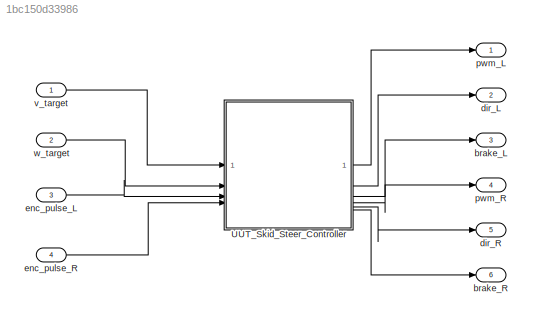
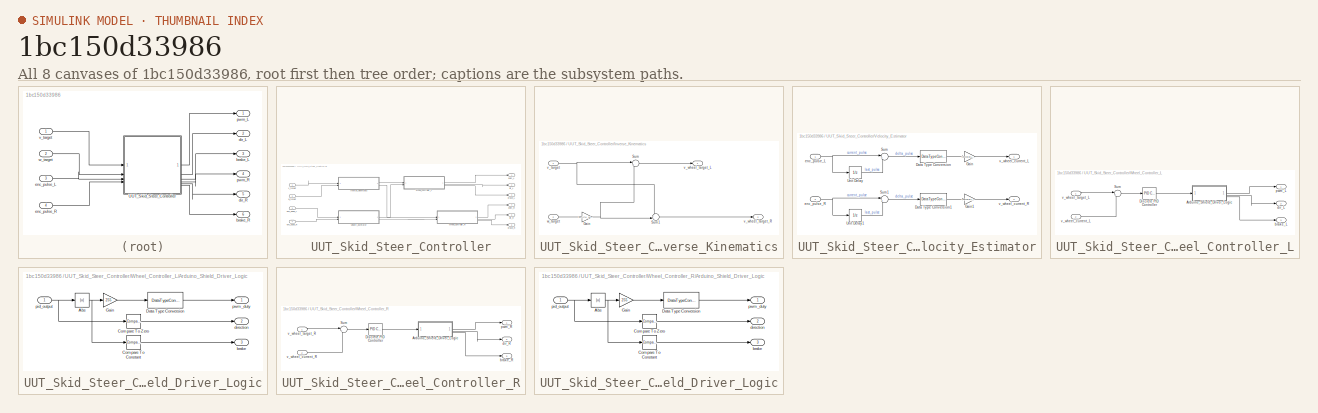
[diagram: thumbnail index - all 8 canvases of the model, root first then tree order]
MODEL slx_1bc150d33986
KIND model
CONFIG AbsTol = auto
CONFIG EnableMultiTasking = off
CONFIG FixedStep = 0.01
CONFIG MaxStep = auto
CONFIG MinStep = auto
CONFIG RelTol = 1e-3
CONFIG SampleTimeConstraint = Unconstrained
CONFIG SolverName = ode4
CONFIG StartTime = 0.0
CONFIG StopTime = 10
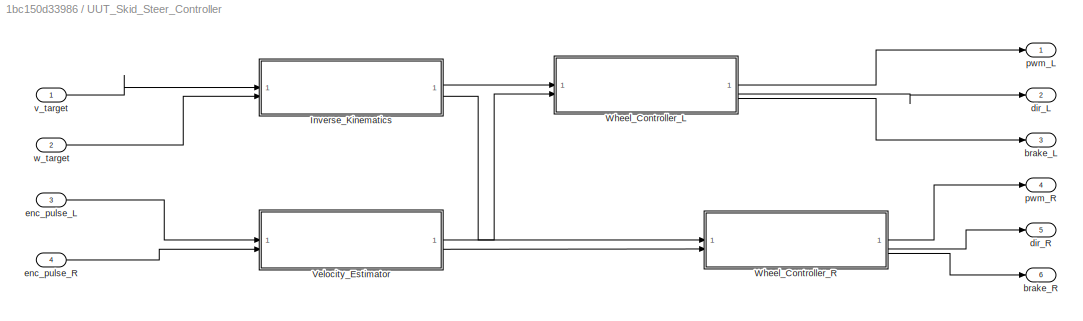
BLOCK [SubSystem] UUT_Skid_Steer_Controller
BLOCK [SubSystem] UUT_Skid_Steer_Controller/Inverse_Kinematics
BLOCK [Gain] UUT_Skid_Steer_Controller/Inverse_Kinematics/Gain
  Gain = TRACK_WIDTH / 2
BLOCK [Sum] UUT_Skid_Steer_Controller/Inverse_Kinematics/Sum
  Inputs = |+-
BLOCK [Sum] UUT_Skid_Steer_Controller/Inverse_Kinematics/Sum1
  Inputs = ++|
BLOCK [Inport] UUT_Skid_Steer_Controller/Inverse_Kinematics/v_target
  OutDataTypeStr = double
  SignalType = real
  Unit = m/s
BLOCK [Outport] UUT_Skid_Steer_Controller/Inverse_Kinematics/v_wheel_target_L
  OutDataTypeStr = double
  SignalType = real
  Unit = m/s
BLOCK [Outport] UUT_Skid_Steer_Controller/Inverse_Kinematics/v_wheel_target_R
  OutDataTypeStr = double
  Port = 2
  SignalType = real
  Unit = m/s
BLOCK [Inport] UUT_Skid_Steer_Controller/Inverse_Kinematics/w_target
  OutDataTypeStr = double
  Port = 2
  SignalType = real
  Unit = rad/s
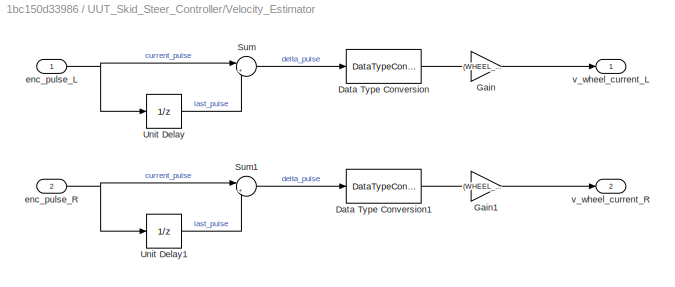
BLOCK [SubSystem] UUT_Skid_Steer_Controller/Velocity_Estimator
BLOCK [DataTypeConversion] UUT_Skid_Steer_Controller/Velocity_Estimator/Data Type Conversion
  OutDataTypeStr = double
  RndMeth = Floor
  SaturateOnIntegerOverflow = off
BLOCK [DataTypeConversion] UUT_Skid_Steer_Controller/Velocity_Estimator/Data Type Conversion1
  OutDataTypeStr = double
  RndMeth = Floor
  SaturateOnIntegerOverflow = off
BLOCK [Gain] UUT_Skid_Steer_Controller/Velocity_Estimator/Gain
  Gain = (WHEEL_DIAMETER * pi) / (PPR * SAMPLING_TIME)
BLOCK [Gain] UUT_Skid_Steer_Controller/Velocity_Estimator/Gain1
  Gain = (WHEEL_DIAMETER * pi) / (PPR * SAMPLING_TIME)
BLOCK [Sum] UUT_Skid_Steer_Controller/Velocity_Estimator/Sum
  Inputs = |+-
BLOCK [Sum] UUT_Skid_Steer_Controller/Velocity_Estimator/Sum1
  Inputs = |+-
BLOCK [UnitDelay] UUT_Skid_Steer_Controller/Velocity_Estimator/Unit Delay
  HasFrameUpgradeWarning = on
  SampleTime = -1
BLOCK [UnitDelay] UUT_Skid_Steer_Controller/Velocity_Estimator/Unit Delay1
  HasFrameUpgradeWarning = on
  SampleTime = -1
BLOCK [Inport] UUT_Skid_Steer_Controller/Velocity_Estimator/enc_pulse_L
  OutDataTypeStr = int32
  SignalType = real
  Unit = count
BLOCK [Inport] UUT_Skid_Steer_Controller/Velocity_Estimator/enc_pulse_R
  OutDataTypeStr = int32
  Port = 2
  SignalType = real
  Unit = count
BLOCK [Outport] UUT_Skid_Steer_Controller/Velocity_Estimator/v_wheel_current_L
  OutDataTypeStr = double
  SignalType = real
  Unit = m/s
BLOCK [Outport] UUT_Skid_Steer_Controller/Velocity_Estimator/v_wheel_current_R
  OutDataTypeStr = double
  Port = 2
  SignalType = real
  Unit = m/s
BLOCK [SubSystem] UUT_Skid_Steer_Controller/Wheel_Controller_L
BLOCK [SubSystem] UUT_Skid_Steer_Controller/Wheel_Controller_L/Arduino_Shield_Driver_Logic
BLOCK [Abs] UUT_Skid_Steer_Controller/Wheel_Controller_L/Arduino_Shield_Driver_Logic/Abs
  SaturateOnIntegerOverflow = off
BLOCK [Reference] UUT_Skid_Steer_Controller/Wheel_Controller_L/Arduino_Shield_Driver_Logic/Compare To Constant  REF=simulink/Logic and Bit
Operations/Compare
To Constant
  SourceBlock = simulink/Logic and Bit\nOperations/Compare\nTo Constant
  SourceType = Compare To Constant
BLOCK [Reference] UUT_Skid_Steer_Controller/Wheel_Controller_L/Arduino_Shield_Driver_Logic/Compare To Zero  REF=simulink/Logic and Bit
Operations/Compare
To Zero
  SourceBlock = simulink/Logic and Bit\nOperations/Compare\nTo Zero
  SourceType = Compare To Zero
BLOCK [DataTypeConversion] UUT_Skid_Steer_Controller/Wheel_Controller_L/Arduino_Shield_Driver_Logic/Data Type Conversion
  OutDataTypeStr = uint8
  RndMeth = Floor
  SaturateOnIntegerOverflow = off
BLOCK [Gain] UUT_Skid_Steer_Controller/Wheel_Controller_L/Arduino_Shield_Driver_Logic/Gain
  Gain = 255
BLOCK [Outport] UUT_Skid_Steer_Controller/Wheel_Controller_L/Arduino_Shield_Driver_Logic/brake
  OutDataTypeStr = boolean
  Port = 3
BLOCK [Outport] UUT_Skid_Steer_Controller/Wheel_Controller_L/Arduino_Shield_Driver_Logic/direction
  OutDataTypeStr = boolean
  Port = 2
BLOCK [Inport] UUT_Skid_Steer_Controller/Wheel_Controller_L/Arduino_Shield_Driver_Logic/pid_output
  OutDataTypeStr = double
  OutMax = 1
  OutMin = -1
  SignalType = real
BLOCK [Outport] UUT_Skid_Steer_Controller/Wheel_Controller_L/Arduino_Shield_Driver_Logic/pwm_duty
  OutDataTypeStr = uint8
  SignalType = real
BLOCK [Reference] UUT_Skid_Steer_Controller/Wheel_Controller_L/Discrete PID Controller  REF=slpidlib/PID Controller
  LibrarySourceBlock = simulink/Discrete/Discrete PID Controller
  SourceBlock = slpidlib/PID Controller
  SourceType = PID 1dof
BLOCK [Sum] UUT_Skid_Steer_Controller/Wheel_Controller_L/Sum
  Inputs = |+-
BLOCK [Outport] UUT_Skid_Steer_Controller/Wheel_Controller_L/brake_L
  Port = 3
BLOCK [Outport] UUT_Skid_Steer_Controller/Wheel_Controller_L/dir_L
  Port = 2
BLOCK [Outport] UUT_Skid_Steer_Controller/Wheel_Controller_L/pwm_L
BLOCK [Inport] UUT_Skid_Steer_Controller/Wheel_Controller_L/v_wheel_current_L
  Port = 2
BLOCK [Inport] UUT_Skid_Steer_Controller/Wheel_Controller_L/v_wheel_target_L
BLOCK [SubSystem] UUT_Skid_Steer_Controller/Wheel_Controller_R
BLOCK [SubSystem] UUT_Skid_Steer_Controller/Wheel_Controller_R/Arduino_Shield_Driver_Logic
BLOCK [Abs] UUT_Skid_Steer_Controller/Wheel_Controller_R/Arduino_Shield_Driver_Logic/Abs
  SaturateOnIntegerOverflow = off
BLOCK [Reference] UUT_Skid_Steer_Controller/Wheel_Controller_R/Arduino_Shield_Driver_Logic/Compare To Constant  REF=simulink/Logic and Bit
Operations/Compare
To Constant
  SourceBlock = simulink/Logic and Bit\nOperations/Compare\nTo Constant
  SourceType = Compare To Constant
BLOCK [Reference] UUT_Skid_Steer_Controller/Wheel_Controller_R/Arduino_Shield_Driver_Logic/Compare To Zero  REF=simulink/Logic and Bit
Operations/Compare
To Zero
  SourceBlock = simulink/Logic and Bit\nOperations/Compare\nTo Zero
  SourceType = Compare To Zero
BLOCK [DataTypeConversion] UUT_Skid_Steer_Controller/Wheel_Controller_R/Arduino_Shield_Driver_Logic/Data Type Conversion
  OutDataTypeStr = uint8
  RndMeth = Floor
  SaturateOnIntegerOverflow = off
BLOCK [Gain] UUT_Skid_Steer_Controller/Wheel_Controller_R/Arduino_Shield_Driver_Logic/Gain
  Gain = 255
BLOCK [Outport] UUT_Skid_Steer_Controller/Wheel_Controller_R/Arduino_Shield_Driver_Logic/brake
  OutDataTypeStr = boolean
  Port = 3
BLOCK [Outport] UUT_Skid_Steer_Controller/Wheel_Controller_R/Arduino_Shield_Driver_Logic/direction
  OutDataTypeStr = boolean
  Port = 2
BLOCK [Inport] UUT_Skid_Steer_Controller/Wheel_Controller_R/Arduino_Shield_Driver_Logic/pid_output
  OutDataTypeStr = double
  OutMax = 1
  OutMin = -1
  SignalType = real
BLOCK [Outport] UUT_Skid_Steer_Controller/Wheel_Controller_R/Arduino_Shield_Driver_Logic/pwm_duty
  OutDataTypeStr = uint8
  SignalType = real
BLOCK [Reference] UUT_Skid_Steer_Controller/Wheel_Controller_R/Discrete PID Controller  REF=slpidlib/PID Controller
  LibrarySourceBlock = simulink/Discrete/Discrete PID Controller
  SourceBlock = slpidlib/PID Controller
  SourceType = PID 1dof
BLOCK [Sum] UUT_Skid_Steer_Controller/Wheel_Controller_R/Sum
  Inputs = |+-
BLOCK [Outport] UUT_Skid_Steer_Controller/Wheel_Controller_R/brake_R
  Port = 3
BLOCK [Outport] UUT_Skid_Steer_Controller/Wheel_Controller_R/dir_R
  Port = 2
BLOCK [Outport] UUT_Skid_Steer_Controller/Wheel_Controller_R/pwm_R
BLOCK [Inport] UUT_Skid_Steer_Controller/Wheel_Controller_R/v_wheel_current_R
  Port = 2
BLOCK [Inport] UUT_Skid_Steer_Controller/Wheel_Controller_R/v_wheel_target_R
BLOCK [Outport] UUT_Skid_Steer_Controller/brake_L
  Port = 3
BLOCK [Outport] UUT_Skid_Steer_Controller/brake_R
  Port = 6
BLOCK [Outport] UUT_Skid_Steer_Controller/dir_L
  Port = 2
BLOCK [Outport] UUT_Skid_Steer_Controller/dir_R
  Port = 5
BLOCK [Inport] UUT_Skid_Steer_Controller/enc_pulse_L
  OutDataTypeStr = int32
  Port = 3
  SignalType = real
  Unit = count
BLOCK [Inport] UUT_Skid_Steer_Controller/enc_pulse_R
  OutDataTypeStr = int32
  Port = 4
  SignalType = real
  Unit = count
BLOCK [Outport] UUT_Skid_Steer_Controller/pwm_L
BLOCK [Outport] UUT_Skid_Steer_Controller/pwm_R
  Port = 4
BLOCK [Inport] UUT_Skid_Steer_Controller/v_target
  OutDataTypeStr = double
BLOCK [Inport] UUT_Skid_Steer_Controller/w_target
  OutDataTypeStr = double
  Port = 2
BLOCK [Outport] brake_L
  Port = 3
BLOCK [Outport] brake_R
  Port = 6
BLOCK [Outport] dir_L
  Port = 2
BLOCK [Outport] dir_R
  Port = 5
BLOCK [Inport] enc_pulse_L
  OutDataTypeStr = int32
  Port = 3
  SignalType = real
  Unit = count
BLOCK [Inport] enc_pulse_R
  OutDataTypeStr = int32
  Port = 4
  SignalType = real
  Unit = count
BLOCK [Outport] pwm_L
BLOCK [Outport] pwm_R
  Port = 4
BLOCK [Inport] v_target
BLOCK [Inport] w_target
  Port = 2
NET UUT_Skid_Steer_Controller/Inverse_Kinematics/Gain:1 -> UUT_Skid_Steer_Controller/Inverse_Kinematics/Sum1:2, UUT_Skid_Steer_Controller/Inverse_Kinematics/Sum:2
LINE UUT_Skid_Steer_Controller/Inverse_Kinematics/Sum1:1 -> UUT_Skid_Steer_Controller/Inverse_Kinematics/v_wheel_target_R:1
LINE UUT_Skid_Steer_Controller/Inverse_Kinematics/Sum:1 -> UUT_Skid_Steer_Controller/Inverse_Kinematics/v_wheel_target_L:1
NET UUT_Skid_Steer_Controller/Inverse_Kinematics/v_target:1 -> UUT_Skid_Steer_Controller/Inverse_Kinematics/Sum1:1, UUT_Skid_Steer_Controller/Inverse_Kinematics/Sum:1
LINE UUT_Skid_Steer_Controller/Inverse_Kinematics/w_target:1 -> UUT_Skid_Steer_Controller/Inverse_Kinematics/Gain:1
LINE UUT_Skid_Steer_Controller/Inverse_Kinematics:1 -> UUT_Skid_Steer_Controller/Wheel_Controller_L:1
LINE UUT_Skid_Steer_Controller/Inverse_Kinematics:2 -> UUT_Skid_Steer_Controller/Wheel_Controller_R:1
LINE UUT_Skid_Steer_Controller/Velocity_Estimator/Data Type Conversion1:1 -> UUT_Skid_Steer_Controller/Velocity_Estimator/Gain1:1
LINE UUT_Skid_Steer_Controller/Velocity_Estimator/Data Type Conversion:1 -> UUT_Skid_Steer_Controller/Velocity_Estimator/Gain:1
LINE UUT_Skid_Steer_Controller/Velocity_Estimator/Gain1:1 -> UUT_Skid_Steer_Controller/Velocity_Estimator/v_wheel_current_R:1
LINE UUT_Skid_Steer_Controller/Velocity_Estimator/Gain:1 -> UUT_Skid_Steer_Controller/Velocity_Estimator/v_wheel_current_L:1
LINE UUT_Skid_Steer_Controller/Velocity_Estimator/Sum1:1 -> UUT_Skid_Steer_Controller/Velocity_Estimator/Data Type Conversion1:1
LINE UUT_Skid_Steer_Controller/Velocity_Estimator/Sum:1 -> UUT_Skid_Steer_Controller/Velocity_Estimator/Data Type Conversion:1
LINE UUT_Skid_Steer_Controller/Velocity_Estimator/Unit Delay1:1 -> UUT_Skid_Steer_Controller/Velocity_Estimator/Sum1:2
LINE UUT_Skid_Steer_Controller/Velocity_Estimator/Unit Delay:1 -> UUT_Skid_Steer_Controller/Velocity_Estimator/Sum:2
NET UUT_Skid_Steer_Controller/Velocity_Estimator/enc_pulse_L:1 -> UUT_Skid_Steer_Controller/Velocity_Estimator/Sum:1, UUT_Skid_Steer_Controller/Velocity_Estimator/Unit Delay:1
NET UUT_Skid_Steer_Controller/Velocity_Estimator/enc_pulse_R:1 -> UUT_Skid_Steer_Controller/Velocity_Estimator/Sum1:1, UUT_Skid_Steer_Controller/Velocity_Estimator/Unit Delay1:1
LINE UUT_Skid_Steer_Controller/Velocity_Estimator:1 -> UUT_Skid_Steer_Controller/Wheel_Controller_L:2
LINE UUT_Skid_Steer_Controller/Velocity_Estimator:2 -> UUT_Skid_Steer_Controller/Wheel_Controller_R:2
NET UUT_Skid_Steer_Controller/Wheel_Controller_L/Arduino_Shield_Driver_Logic/Abs:1 -> UUT_Skid_Steer_Controller/Wheel_Controller_L/Arduino_Shield_Driver_Logic/Compare To Constant:1, UUT_Skid_Steer_Controller/Wheel_Controller_L/Arduino_Shield_Driver_Logic/Gain:1
LINE UUT_Skid_Steer_Controller/Wheel_Controller_L/Arduino_Shield_Driver_Logic/Compare To Constant:1 -> UUT_Skid_Steer_Controller/Wheel_Controller_L/Arduino_Shield_Driver_Logic/brake:1
LINE UUT_Skid_Steer_Controller/Wheel_Controller_L/Arduino_Shield_Driver_Logic/Compare To Zero:1 -> UUT_Skid_Steer_Controller/Wheel_Controller_L/Arduino_Shield_Driver_Logic/direction:1
LINE UUT_Skid_Steer_Controller/Wheel_Controller_L/Arduino_Shield_Driver_Logic/Data Type Conversion:1 -> UUT_Skid_Steer_Controller/Wheel_Controller_L/Arduino_Shield_Driver_Logic/pwm_duty:1
LINE UUT_Skid_Steer_Controller/Wheel_Controller_L/Arduino_Shield_Driver_Logic/Gain:1 -> UUT_Skid_Steer_Controller/Wheel_Controller_L/Arduino_Shield_Driver_Logic/Data Type Conversion:1
NET UUT_Skid_Steer_Controller/Wheel_Controller_L/Arduino_Shield_Driver_Logic/pid_output:1 -> UUT_Skid_Steer_Controller/Wheel_Controller_L/Arduino_Shield_Driver_Logic/Abs:1, UUT_Skid_Steer_Controller/Wheel_Controller_L/Arduino_Shield_Driver_Logic/Compare To Zero:1
LINE UUT_Skid_Steer_Controller/Wheel_Controller_L/Arduino_Shield_Driver_Logic:1 -> UUT_Skid_Steer_Controller/Wheel_Controller_L/pwm_L:1
LINE UUT_Skid_Steer_Controller/Wheel_Controller_L/Arduino_Shield_Driver_Logic:2 -> UUT_Skid_Steer_Controller/Wheel_Controller_L/dir_L:1
LINE UUT_Skid_Steer_Controller/Wheel_Controller_L/Arduino_Shield_Driver_Logic:3 -> UUT_Skid_Steer_Controller/Wheel_Controller_L/brake_L:1
LINE UUT_Skid_Steer_Controller/Wheel_Controller_L/Discrete PID Controller:1 -> UUT_Skid_Steer_Controller/Wheel_Controller_L/Arduino_Shield_Driver_Logic:1
LINE UUT_Skid_Steer_Controller/Wheel_Controller_L/Sum:1 -> UUT_Skid_Steer_Controller/Wheel_Controller_L/Discrete PID Controller:1
LINE UUT_Skid_Steer_Controller/Wheel_Controller_L/v_wheel_current_L:1 -> UUT_Skid_Steer_Controller/Wheel_Controller_L/Sum:2
LINE UUT_Skid_Steer_Controller/Wheel_Controller_L/v_wheel_target_L:1 -> UUT_Skid_Steer_Controller/Wheel_Controller_L/Sum:1
LINE UUT_Skid_Steer_Controller/Wheel_Controller_L:1 -> UUT_Skid_Steer_Controller/pwm_L:1
LINE UUT_Skid_Steer_Controller/Wheel_Controller_L:2 -> UUT_Skid_Steer_Controller/dir_L:1
LINE UUT_Skid_Steer_Controller/Wheel_Controller_L:3 -> UUT_Skid_Steer_Controller/brake_L:1
NET UUT_Skid_Steer_Controller/Wheel_Controller_R/Arduino_Shield_Driver_Logic/Abs:1 -> UUT_Skid_Steer_Controller/Wheel_Controller_R/Arduino_Shield_Driver_Logic/Compare To Constant:1, UUT_Skid_Steer_Controller/Wheel_Controller_R/Arduino_Shield_Driver_Logic/Gain:1
LINE UUT_Skid_Steer_Controller/Wheel_Controller_R/Arduino_Shield_Driver_Logic/Compare To Constant:1 -> UUT_Skid_Steer_Controller/Wheel_Controller_R/Arduino_Shield_Driver_Logic/brake:1
LINE UUT_Skid_Steer_Controller/Wheel_Controller_R/Arduino_Shield_Driver_Logic/Compare To Zero:1 -> UUT_Skid_Steer_Controller/Wheel_Controller_R/Arduino_Shield_Driver_Logic/direction:1
LINE UUT_Skid_Steer_Controller/Wheel_Controller_R/Arduino_Shield_Driver_Logic/Data Type Conversion:1 -> UUT_Skid_Steer_Controller/Wheel_Controller_R/Arduino_Shield_Driver_Logic/pwm_duty:1
LINE UUT_Skid_Steer_Controller/Wheel_Controller_R/Arduino_Shield_Driver_Logic/Gain:1 -> UUT_Skid_Steer_Controller/Wheel_Controller_R/Arduino_Shield_Driver_Logic/Data Type Conversion:1
NET UUT_Skid_Steer_Controller/Wheel_Controller_R/Arduino_Shield_Driver_Logic/pid_output:1 -> UUT_Skid_Steer_Controller/Wheel_Controller_R/Arduino_Shield_Driver_Logic/Abs:1, UUT_Skid_Steer_Controller/Wheel_Controller_R/Arduino_Shield_Driver_Logic/Compare To Zero:1
LINE UUT_Skid_Steer_Controller/Wheel_Controller_R/Arduino_Shield_Driver_Logic:1 -> UUT_Skid_Steer_Controller/Wheel_Controller_R/pwm_R:1
LINE UUT_Skid_Steer_Controller/Wheel_Controller_R/Arduino_Shield_Driver_Logic:2 -> UUT_Skid_Steer_Controller/Wheel_Controller_R/dir_R:1
LINE UUT_Skid_Steer_Controller/Wheel_Controller_R/Arduino_Shield_Driver_Logic:3 -> UUT_Skid_Steer_Controller/Wheel_Controller_R/brake_R:1
LINE UUT_Skid_Steer_Controller/Wheel_Controller_R/Discrete PID Controller:1 -> UUT_Skid_Steer_Controller/Wheel_Controller_R/Arduino_Shield_Driver_Logic:1
LINE UUT_Skid_Steer_Controller/Wheel_Controller_R/Sum:1 -> UUT_Skid_Steer_Controller/Wheel_Controller_R/Discrete PID Controller:1
LINE UUT_Skid_Steer_Controller/Wheel_Controller_R/v_wheel_current_R:1 -> UUT_Skid_Steer_Controller/Wheel_Controller_R/Sum:2
LINE UUT_Skid_Steer_Controller/Wheel_Controller_R/v_wheel_target_R:1 -> UUT_Skid_Steer_Controller/Wheel_Controller_R/Sum:1
LINE UUT_Skid_Steer_Controller/Wheel_Controller_R:1 -> UUT_Skid_Steer_Controller/pwm_R:1
LINE UUT_Skid_Steer_Controller/Wheel_Controller_R:2 -> UUT_Skid_Steer_Controller/dir_R:1
LINE UUT_Skid_Steer_Controller/Wheel_Controller_R:3 -> UUT_Skid_Steer_Controller/brake_R:1
LINE UUT_Skid_Steer_Controller/enc_pulse_L:1 -> UUT_Skid_Steer_Controller/Velocity_Estimator:1
LINE UUT_Skid_Steer_Controller/enc_pulse_R:1 -> UUT_Skid_Steer_Controller/Velocity_Estimator:2
LINE UUT_Skid_Steer_Controller/v_target:1 -> UUT_Skid_Steer_Controller/Inverse_Kinematics:1
LINE UUT_Skid_Steer_Controller/w_target:1 -> UUT_Skid_Steer_Controller/Inverse_Kinematics:2
LINE UUT_Skid_Steer_Controller:1 -> pwm_L:1
LINE UUT_Skid_Steer_Controller:2 -> dir_L:1
LINE UUT_Skid_Steer_Controller:3 -> brake_L:1
LINE UUT_Skid_Steer_Controller:4 -> pwm_R:1
LINE UUT_Skid_Steer_Controller:5 -> dir_R:1
LINE UUT_Skid_Steer_Controller:6 -> brake_R:1
LINE enc_pulse_L:1 -> UUT_Skid_Steer_Controller:3
LINE enc_pulse_R:1 -> UUT_Skid_Steer_Controller:4
LINE v_target:1 -> UUT_Skid_Steer_Controller:1
LINE w_target:1 -> UUT_Skid_Steer_Controller:2
note: NET lines group one-source signal fan-out (src -> all destinations, sorted); 1:1 wires keep LINE
